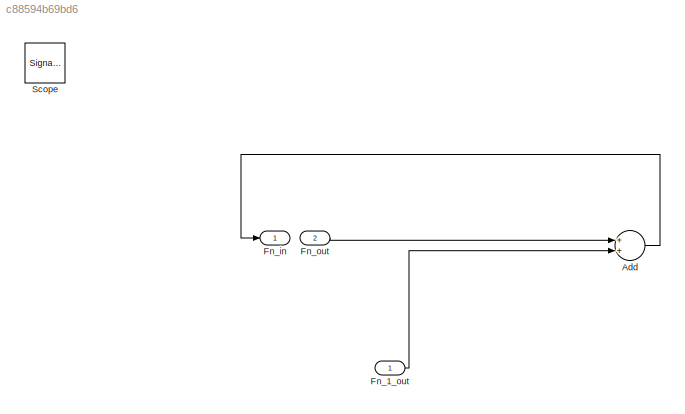
MODEL slx_c88594b69bd6
KIND model
BLOCK [Sum] Add
  InputSameDT = off
  OutDataTypeStr = Inherit: Inherit via internal rule
  Ports = [2, 1]
  SaturateOnIntegerOverflow = off
BLOCK [Inport] Fn_1_out
  IconDisplay = Port number
BLOCK [Outport] Fn_in
  IconDisplay = Port number
BLOCK [Inport] Fn_out
  IconDisplay = Port number
  Port = 2
BLOCK [SignalViewerScope] Scope
  IOType = viewer
  MaxDataPoints = 7500
  NumInputPorts = 2
  Ports = []
  RefreshTime = 0.035000
  ShowDataMarkers = off
  ShowLegends = off
  YMax = 5~5
  YMin = -5~-5
  ZoomMode = yonly
LINE Add:1 -> Fn_in:1
LINE Fn_1_out:1 -> Add:2
LINE Fn_out:1 -> Add:1
